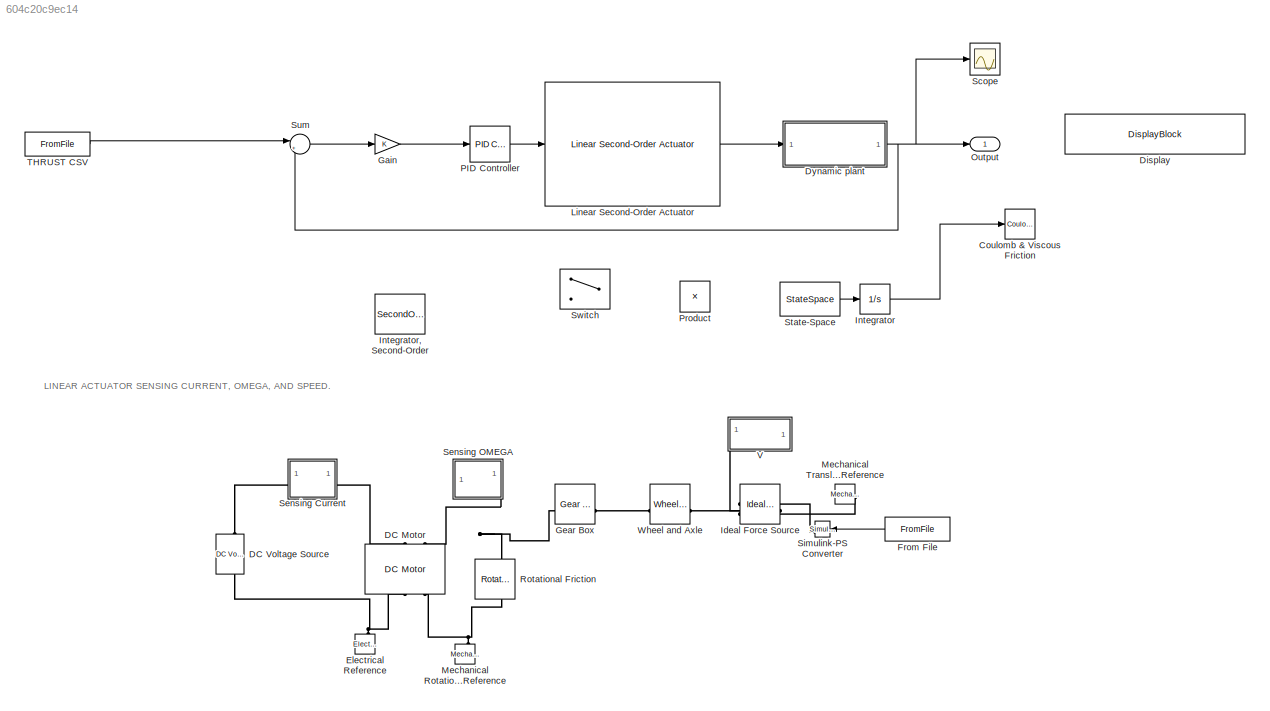
MODEL slx_604c20c9ec14
KIND model
CONFIG AbsTol = auto
CONFIG EnableMultiTasking = off
CONFIG FixedStep = auto
CONFIG MaxStep = auto
CONFIG MinStep = auto
CONFIG RelTol = 1e-3
CONFIG SampleTimeConstraint = Unconstrained
CONFIG SolverName = VariableStepAuto
CONFIG StartTime = 0.0
CONFIG StopTime = 10.0
BLOCK [Reference] Coulomb & Viscous Friction  REF=simulink/Discontinuities/Coulomb &
Viscous Friction
  SourceBlock = simulink/Discontinuities/Coulomb &\nViscous Friction
  SourceType = Coulombic and Viscous Friction
BLOCK [Reference] DC Motor  REF=ee_lib/Electromechanical/Brushed Motors/DC Motor
  NameLocation = right
  SourceBlock = ee_lib/Electromechanical/Brushed Motors/DC Motor
  SourceType = DC Motor
BLOCK [Reference] DC Voltage Source  REF=fl_lib/Electrical/Electrical Sources/DC Voltage Source
  NameLocation = right
  SourceBlock = fl_lib/Electrical/Electrical Sources/DC Voltage Source
  SourceType = DC Voltage Source
BLOCK [DisplayBlock] Display
  LabelPosition = Hide
  Transparency = 1
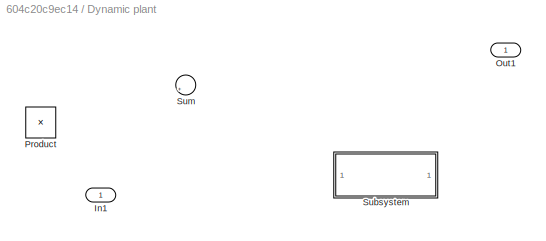
BLOCK [SubSystem] Dynamic plant
BLOCK [Inport] Dynamic plant/In1
BLOCK [Outport] Dynamic plant/Out1
BLOCK [Product] Dynamic plant/Product
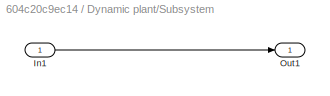
BLOCK [SubSystem] Dynamic plant/Subsystem
BLOCK [Inport] Dynamic plant/Subsystem/In1
BLOCK [Outport] Dynamic plant/Subsystem/Out1
BLOCK [Sum] Dynamic plant/Sum
  Inputs = |++
BLOCK [Reference] Electrical Reference  REF=fl_lib/Electrical/Electrical Elements/Electrical Reference
  NameLocation = right
  SourceBlock = fl_lib/Electrical/Electrical Elements/Electrical Reference
  SourceType = Electrical Reference
BLOCK [FromFile] From File
  NameLocation = top
  SampleTime = 0
BLOCK [Gain] Gain
BLOCK [Reference] Gear Box  REF=fl_lib/Mechanical/Mechanisms/Gear Box
  SourceBlock = fl_lib/Mechanical/Mechanisms/Gear Box
  SourceType = Gear Box
BLOCK [Reference] Ideal Force Source  REF=fl_lib/Mechanical/Mechanical Sources/Ideal Force Source
  NameLocation = top
  SourceBlock = fl_lib/Mechanical/Mechanical Sources/Ideal Force Source
  SourceType = Ideal Force Source
BLOCK [Integrator] Integrator
BLOCK [SecondOrderIntegrator] Integrator, Second-Order
BLOCK [Reference] Linear Second-Order Actuator  REF=aerolibactuator/Linear Second-Order Actuator
  SourceBlock = aerolibactuator/Linear Second-Order Actuator
  SourceType = LinearSecondOrderActuator
BLOCK [Reference] Mechanical Rotational Reference  REF=fl_lib/Mechanical/Rotational Elements/Mechanical
Rotational Reference
  NameLocation = right
  SourceBlock = fl_lib/Mechanical/Rotational Elements/Mechanical\nRotational Reference
  SourceType = Mechanical\nRotational Reference
BLOCK [Reference] Mechanical Translational Reference  REF=fl_lib/Mechanical/Translational
Elements/Mechanical
Translational
Reference
  NameLocation = top
  SourceBlock = fl_lib/Mechanical/Translational\nElements/Mechanical\nTranslational\nReference
  SourceType = Mechanical\nTranslational\nReference
BLOCK [Outport] Output
BLOCK [Reference] PID Controller  REF=slpidlib/PID Controller
  LibrarySourceBlock = simulink/Continuous/PID Controller
  SourceBlock = slpidlib/PID Controller
  SourceType = PID 1dof
BLOCK [Product] Product
BLOCK [Reference] Rotational Friction  REF=fl_lib/Mechanical/Rotational Elements/Rotational Friction
  NameLocation = left
  SourceBlock = fl_lib/Mechanical/Rotational Elements/Rotational Friction
  SourceType = Rotational Friction
BLOCK [Scope] Scope
  Floating = off
  NumInputPorts = 1
  ScopeSpecificationString = Simulink.scopes.TimeScopeBlockCfg('CurrentConfiguration', extmgr.ConfigurationSet(extmgr.Configuration('Core','General UI',true),extmgr.Configuration('Core','Source UI',true),extmgr.Configuration('Sources','WiredSimulink',true),extmgr.Configuration('Visuals','Time Domain',true),extmgr.Configuration('Tools','Plot Navigation',true),extmgr.Configuration('Tools','Measurements',true)),'Version','2024b'...<+1ch>
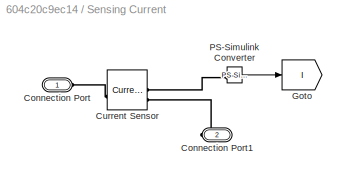
BLOCK [SubSystem] Sensing Current
BLOCK [PMIOPort] Sensing Current/Connection Port
  Side = Left
BLOCK [PMIOPort] Sensing Current/Connection Port1
  Port = 2
  Side = Right
BLOCK [Reference] Sensing Current/Current Sensor  REF=fl_lib/Electrical/Electrical Sensors/Current Sensor
  SourceBlock = fl_lib/Electrical/Electrical Sensors/Current Sensor
  SourceType = Current Sensor
BLOCK [Goto] Sensing Current/Goto
  GotoTag = I
BLOCK [Reference] Sensing Current/PS-Simulink Converter  REF=nesl_utility/PS-Simulink
Converter
  SourceBlock = nesl_utility/PS-Simulink\nConverter
  SourceType = PS-Simulink\nConverter
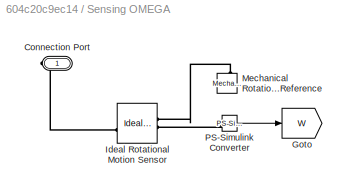
BLOCK [SubSystem] Sensing OMEGA
  PortSchema = {"entries":[{"content":{"sides":[{"content":{},"type":"ConnectorPlacement.EquallySpacedRectSide","uuid":"c180b185-6bde-417e-888f-d3a66296bea6"},{"content":{"side":"RIGHT"},"type":"ConnectorPlacement.EquallySpacedRectSide","uuid":"dfbb7eed-7397-4c08-988f-0d4530be3b68"},{"content":{"side":"TOP"},"type":"ConnectorPlacement.EquallySpacedRectSide","uuid":"fa67b10c-0b1a-4159-9fa8-f40338897cc0"},{"conten...<+328ch>
BLOCK [PMIOPort] Sensing OMEGA/Connection Port
  Side = Right
BLOCK [Goto] Sensing OMEGA/Goto
  GotoTag = W
BLOCK [Reference] Sensing OMEGA/Ideal Rotational Motion Sensor  REF=fl_lib/Mechanical/Mechanical Sensors/Ideal Rotational
Motion Sensor
  SourceBlock = fl_lib/Mechanical/Mechanical Sensors/Ideal Rotational\nMotion Sensor
  SourceType = Ideal Rotational\nMotion Sensor
BLOCK [Reference] Sensing OMEGA/Mechanical Rotational Reference  REF=fl_lib/Mechanical/Rotational Elements/Mechanical
Rotational Reference
  NameLocation = right
  SourceBlock = fl_lib/Mechanical/Rotational Elements/Mechanical\nRotational Reference
  SourceType = Mechanical\nRotational Reference
BLOCK [Reference] Sensing OMEGA/PS-Simulink Converter  REF=nesl_utility/PS-Simulink
Converter
  SourceBlock = nesl_utility/PS-Simulink\nConverter
  SourceType = PS-Simulink\nConverter
BLOCK [Reference] Simulink-PS Converter  REF=nesl_utility/Simulink-PS
Converter
  NameLocation = top
  SourceBlock = nesl_utility/Simulink-PS\nConverter
  SourceType = Simulink-PS\nConverter
BLOCK [StateSpace] State-Space
  InitialCondition = 0
BLOCK [Sum] Sum
  Inputs = |++
BLOCK [Switch] Switch
  Criteria = u2 > Threshold
  InputSameDT = off
  SaturateOnIntegerOverflow = off
BLOCK [FromFile] THRUST CSV
  SampleTime = 0
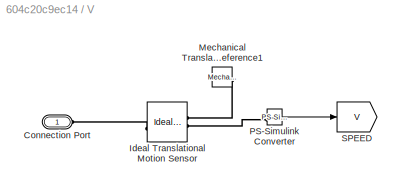
BLOCK [SubSystem] V
BLOCK [PMIOPort] V/Connection Port
  Side = Left
BLOCK [Reference] V/Ideal Translational Motion Sensor  REF=fl_lib/Mechanical/Mechanical Sensors/Ideal Translational
Motion Sensor
  SourceBlock = fl_lib/Mechanical/Mechanical Sensors/Ideal Translational\nMotion Sensor
  SourceType = Ideal Translational\nMotion Sensor
BLOCK [Reference] V/Mechanical Translational Reference1  REF=fl_lib/Mechanical/Translational
Elements/Mechanical
Translational
Reference
  NameLocation = top
  SourceBlock = fl_lib/Mechanical/Translational\nElements/Mechanical\nTranslational\nReference
  SourceType = Mechanical\nTranslational\nReference
BLOCK [Reference] V/PS-Simulink Converter  REF=nesl_utility/PS-Simulink
Converter
  SourceBlock = nesl_utility/PS-Simulink\nConverter
  SourceType = PS-Simulink\nConverter
BLOCK [Goto] V/SPEED
  GotoTag = V
BLOCK [Reference] Wheel and Axle  REF=fl_lib/Mechanical/Mechanisms/Wheel and Axle
  SourceBlock = fl_lib/Mechanical/Mechanisms/Wheel and Axle
  SourceType = Wheel and Axle
ANNOTATION (root): LINEAR ACTUATOR SENSING CURRENT, OMEGA, AND SPEED.
LINE Dynamic plant/Subsystem/In1:1 -> Dynamic plant/Subsystem/Out1:1
NET Dynamic plant:1 -> Output:1, Scope:1, Sum:2
LINE From File:1 -> Simulink-PS Converter:1
LINE Gain:1 -> PID Controller:1
LINE Integrator:1 -> Coulomb & Viscous Friction:1
LINE Linear Second-Order Actuator:1 -> Dynamic plant:1
LINE PID Controller:1 -> Linear Second-Order Actuator:1
LINE Sensing Current/PS-Simulink Converter:1 -> Sensing Current/Goto:1
LINE Sensing OMEGA/PS-Simulink Converter:1 -> Sensing OMEGA/Goto:1
LINE State-Space:1 -> Integrator:1
LINE Sum:1 -> Gain:1
LINE THRUST CSV:1 -> Sum:1
LINE V/PS-Simulink Converter:1 -> V/SPEED:1
PLINE DC Motor:LConn1 -- Sensing Current:RConn1
PNET net1: DC Motor:LConn2 -- Gear Box:LConn1 -- Rotational Friction:LConn1 -- Sensing OMEGA:RConn1
PNET net2: DC Motor:RConn1 -- DC Voltage Source:RConn1 -- Electrical Reference:LConn1
PNET net3: DC Motor:RConn2 -- Mechanical Rotational Reference:LConn1 -- Rotational Friction:RConn1
PLINE DC Voltage Source:LConn1 -- Sensing Current:LConn1
PLINE Gear Box:RConn1 -- Wheel and Axle:LConn1
PNET net4: Ideal Force Source:LConn1 -- V:LConn1 -- Wheel and Axle:RConn1
PLINE Ideal Force Source:RConn1 -- Simulink-PS Converter:RConn1
PLINE Ideal Force Source:RConn2 -- Mechanical Translational Reference:LConn1
PLINE Sensing Current/Connection Port1:RConn1 -- Sensing Current/Current Sensor:RConn2
PLINE Sensing Current/Connection Port:RConn1 -- Sensing Current/Current Sensor:LConn1
PLINE Sensing Current/Current Sensor:RConn1 -- Sensing Current/PS-Simulink Converter:LConn1
PLINE Sensing OMEGA/Connection Port:RConn1 -- Sensing OMEGA/Ideal Rotational Motion Sensor:LConn1
PLINE Sensing OMEGA/Ideal Rotational Motion Sensor:RConn1 -- Sensing OMEGA/Mechanical Rotational Reference:LConn1
PLINE Sensing OMEGA/Ideal Rotational Motion Sensor:RConn2 -- Sensing OMEGA/PS-Simulink Converter:LConn1
PLINE V/Connection Port:RConn1 -- V/Ideal Translational Motion Sensor:LConn1
PLINE V/Ideal Translational Motion Sensor:RConn1 -- V/Mechanical Translational Reference1:LConn1
PLINE V/Ideal Translational Motion Sensor:RConn2 -- V/PS-Simulink Converter:LConn1
note: NET lines group one-source signal fan-out (src -> all destinations, sorted); 1:1 wires keep LINE; PNET lines group multi-terminal physical nets as a canonical sorted terminal list (undirected conserving connections); 2-terminal nets keep the pairwise PLINE form
